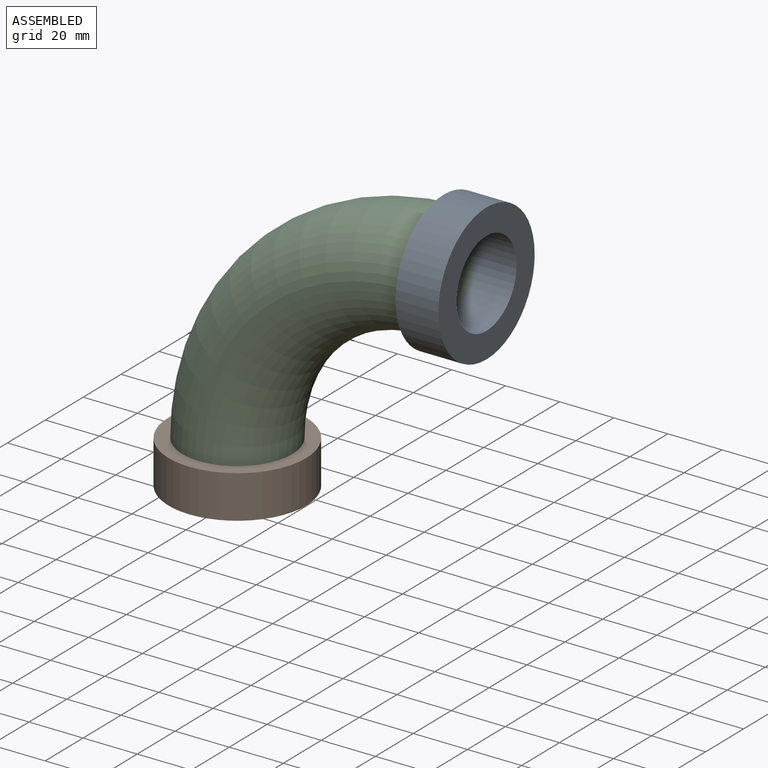
[diagram: assembled view]
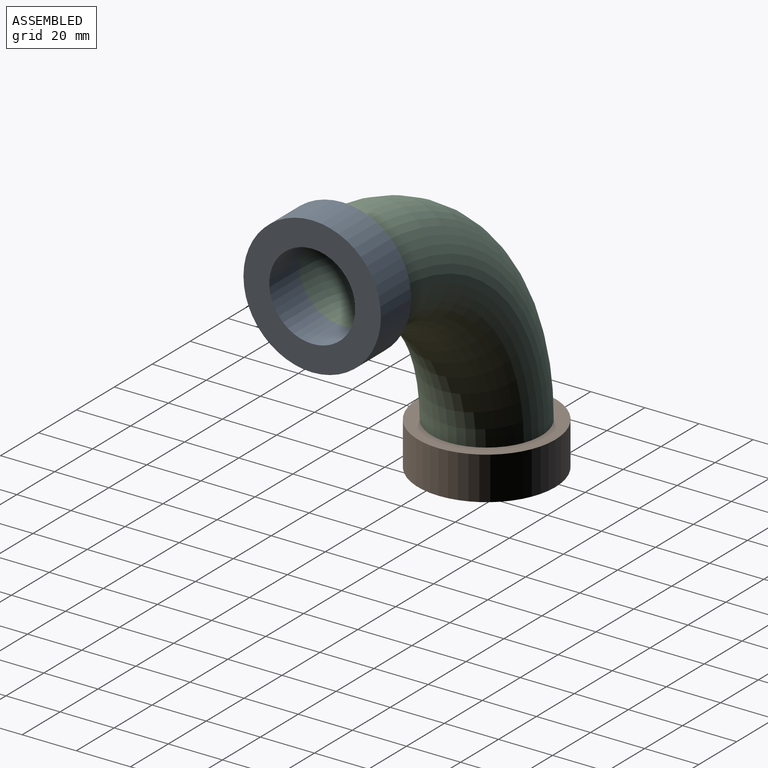
[diagram: assembled view, second angle]
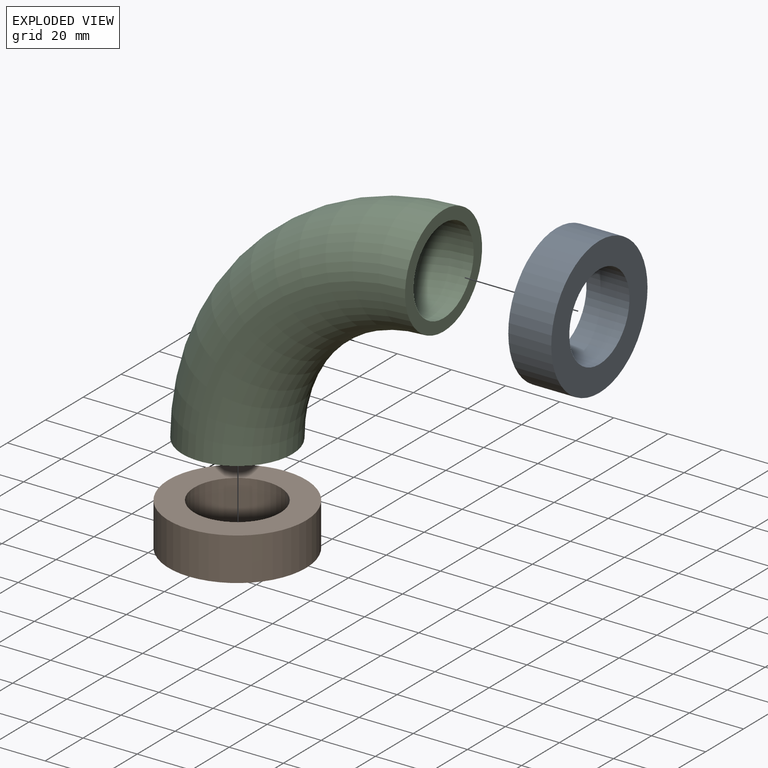
[diagram: exploded view]
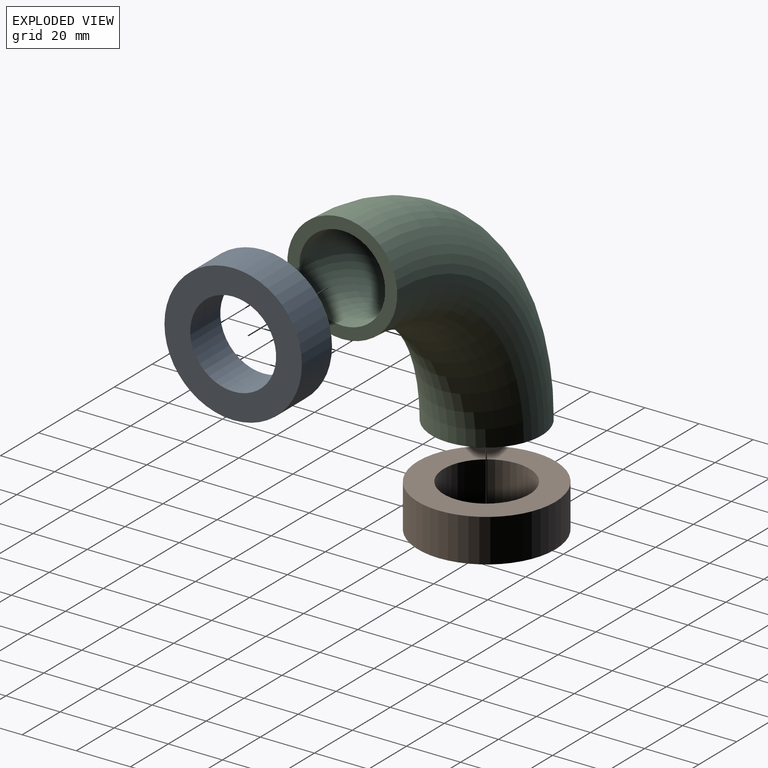
[diagram: exploded view, second angle]
ASSEMBLY  parts=3 mates=2
PART A: 4 faces, bbox 15.9x50.8x50.8 mm
  f0: plane 50.8x50.8mm, normal (1,0,0), area 1235.1mm2, adj f2,f3
  f1: plane 50.8x50.8mm, normal (-1,0,0), area 1235.1mm2, adj f2,f3
  f2: cylinder r=25.4mm len=50.8mm, axis (-1,0,0), area 2533.5mm2, adj f0,f1
  f3: cylinder r=15.88mm len=31.75mm, axis (1,0,0), area 1583.5mm2, adj f0,f1
PART B: 4 faces, bbox 50.8x50.8x15.9 mm
  f0: plane 50.8x50.8mm, normal (0,0,-1), area 1235.1mm2, adj f2,f3
  f1: plane 50.8x50.8mm, normal (0,0,1), area 1235.1mm2, adj f2,f3
  f2: cylinder r=25.4mm len=50.8mm, axis (0,0,1), area 2533.5mm2, adj f0,f1
  f3: cylinder r=15.88mm len=31.75mm, axis (0,0,1), area 1583.5mm2, adj f0,f1
PART C: 4 faces, bbox 104.5x40.6x104.5 mm
  f0: plane 40.64x40.64mm, normal (1,0,0), area 505.4mm2, adj f2,f3
  f1: plane 40.64x40.64mm, normal (0,0,-1), area 505.4mm2, adj f2,f3
  f2: torus R=76.2mm, axis (0,-1,0), area 15281.9mm2, adj f0,f1
  f3: torus R=76.2mm, axis (0,-1,0), area 11939mm2, adj f0,f1
PLACE A t=(21.35,-86.1,37.72)mm
PLACE B t=(21.35,-86.1,37.72)mm
PLACE C t=(21.35,-86.1,37.72)mm
MATE fastened C.f1 <-> B.f3  axis (0,0,-1) through (-16.75,-86.1,-0.38)mm
MATE fastened A.f3 <-> C.f0  axis (1,0,0) through (59.45,-86.1,75.82)mm
